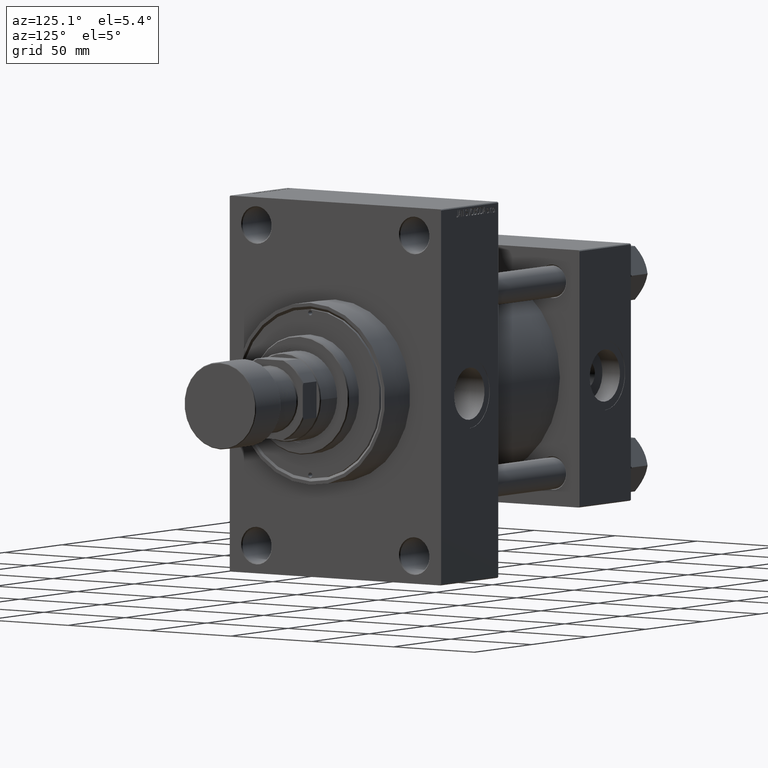
[diagram: clean part render]
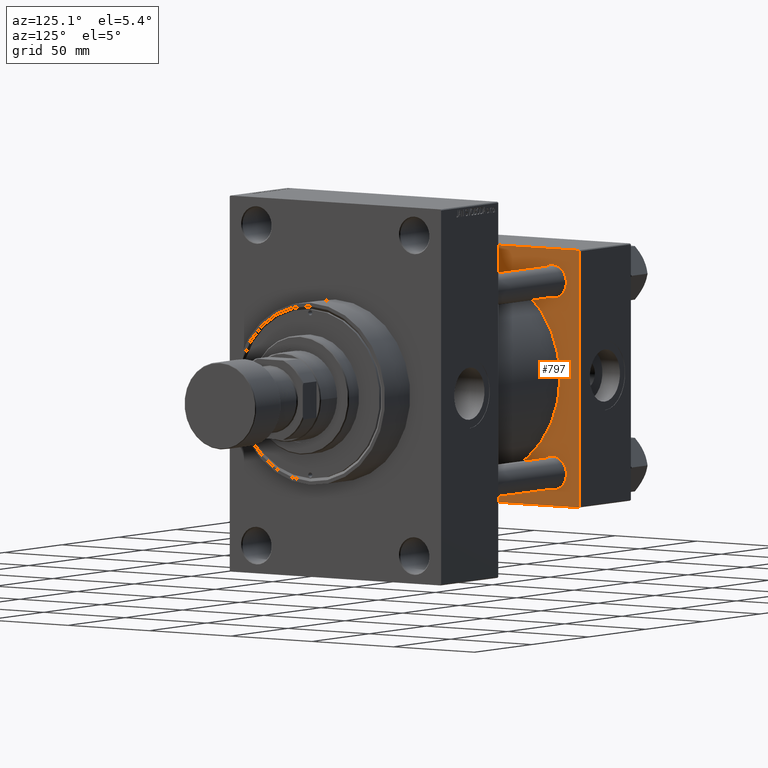
[diagram: same view with one face highlighted and labeled with its STEP entity id]
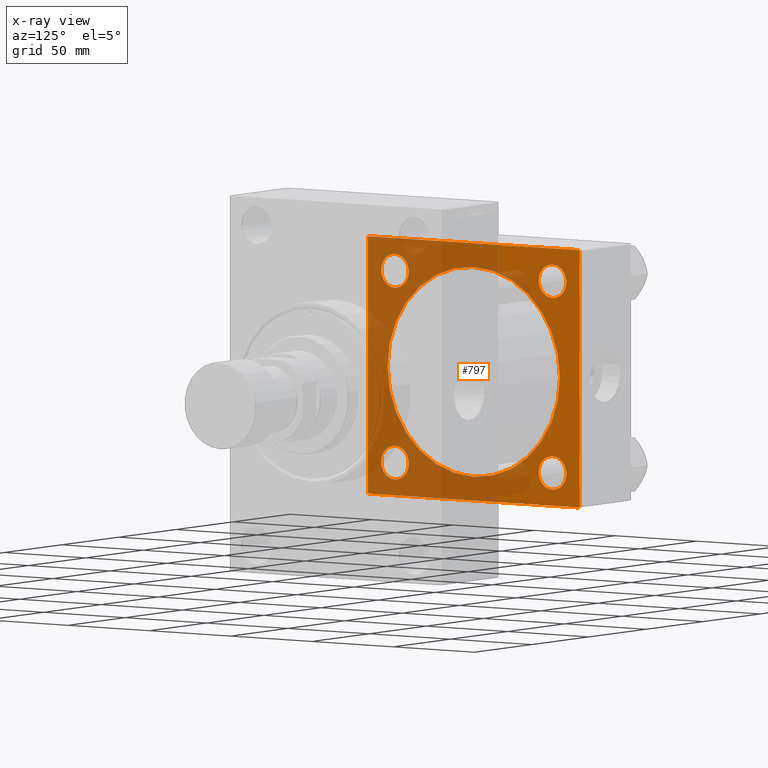
[diagram: x-ray of the same camera — body ghosted, the highlighted face saturated]
A machine part, auxiliary view. The second image highlights one B-rep face of the part: STEP entity #797.
The next image is the same camera in x-ray: the body ghosted, the highlighted face saturated — about 60% of this face is hidden behind the body in this view.
In plain terms, the highlighted planar face has unit normal (-1, 0, 0).
Its self-contained STEP definition (entity closure, byte-faithful):
#160 = DIRECTION ( 'NONE',  ( -0.000000000000000000, 0.000000000000000000, 1.000000000000000000 ) ) ;
#286 = CARTESIAN_POINT ( 'NONE',  ( 45.00000000000000000, 48.45000000000000995, 56.95000000000002416 ) ) ;
#438 = CARTESIAN_POINT ( 'NONE',  ( 45.00000000000000000, 64.49999999999997158, 65.00000000000001421 ) ) ;
#495 = DIRECTION ( 'NONE',  ( 0.000000000000000000, 0.000000000000000000, 1.000000000000000000 ) ) ;
#797 = ADVANCED_FACE ( 'NONE', ( #3348, #10913, #7255, #18013, #47821, #14339 ), #22137, .F. ) ;
#1212 = VERTEX_POINT ( 'NONE', #17980 ) ;
#1344 = ORIENTED_EDGE ( 'NONE', *, *, #40853, .T. ) ;
#2007 = CARTESIAN_POINT ( 'NONE',  ( 45.00000000000000000, 65.00000000000000000, 65.00000000000001421 ) ) ;
#2072 = DIRECTION ( 'NONE',  ( -1.000000000000000000, 0.000000000000000000, -0.000000000000000000 ) ) ;
#2829 = EDGE_CURVE ( 'NONE', #8876, #38395, #34873, .T. ) ;
#2983 = CIRCLE ( 'NONE', #14697, 8.500000000000007105 ) ;
#3159 = EDGE_CURVE ( 'NONE', #36499, #27525, #39459, .T. ) ;
#3348 = FACE_BOUND ( 'NONE', #22601, .T. ) ;
#3430 = DIRECTION ( 'NONE',  ( 1.000000000000000000, -0.000000000000000000, 0.000000000000000000 ) ) ;
#4352 = DIRECTION ( 'NONE',  ( -0.000000000000000000, 0.7071067811865474617, 0.7071067811865474617 ) ) ;
#4515 = DIRECTION ( 'NONE',  ( 0.000000000000000000, 0.000000000000000000, 1.000000000000000000 ) ) ;
#4696 = CARTESIAN_POINT ( 'NONE',  ( 45.00000000000000000, -48.44999999999999574, -39.95000000000001705 ) ) ;
#4749 = CARTESIAN_POINT ( 'NONE',  ( 45.00000000000000000, 3.888542821515762466E-15, -53.00000000000000711 ) ) ;
#4931 = AXIS2_PLACEMENT_3D ( 'NONE', #43976, #10981, #25887 ) ;
#5047 = CARTESIAN_POINT ( 'NONE',  ( 45.00000000000000000, 65.00000000000000000, -64.99999999999998579 ) ) ;
#5417 = VECTOR ( 'NONE', #9473, 1000.000000000000114 ) ;
#5516 = LINE ( 'NONE', #18758, #29531 ) ;
#5913 = AXIS2_PLACEMENT_3D ( 'NONE', #9645, #2072, #27731 ) ;
#6005 = DIRECTION ( 'NONE',  ( -0.000000000000000000, -0.7071067811865672237, -0.7071067811865279218 ) ) ;
#6129 = ORIENTED_EDGE ( 'NONE', *, *, #41875, .T. ) ;
#6322 = EDGE_CURVE ( 'NONE', #27525, #22209, #14410, .T. ) ;
#6492 = AXIS2_PLACEMENT_3D ( 'NONE', #20899, #38522, #16535 ) ;
#6691 = EDGE_CURVE ( 'NONE', #41224, #33841, #5516, .T. ) ;
#6708 = DIRECTION ( 'NONE',  ( -1.000000000000000000, 0.000000000000000000, -0.000000000000000000 ) ) ;
#7199 = ORIENTED_EDGE ( 'NONE', *, *, #27215, .F. ) ;
#7255 = FACE_BOUND ( 'NONE', #34849, .T. ) ;
#7587 = EDGE_LOOP ( 'NONE', ( #42268, #21028 ) ) ;
#7893 = DIRECTION ( 'NONE',  ( -1.000000000000000000, 0.000000000000000000, -0.000000000000000000 ) ) ;
#8180 = ORIENTED_EDGE ( 'NONE', *, *, #27058, .T. ) ;
#8627 = VERTEX_POINT ( 'NONE', #45353 ) ;
#8876 = VERTEX_POINT ( 'NONE', #4749 ) ;
#9367 = CARTESIAN_POINT ( 'NONE',  ( 45.00000000000000000, -2.602085213965210642E-15, 53.00000000000000711 ) ) ;
#9473 = DIRECTION ( 'NONE',  ( 0.000000000000000000, -0.7071067811865474617, 0.7071067811865474617 ) ) ;
#9645 = CARTESIAN_POINT ( 'NONE',  ( 45.00000000000000000, -48.44999999999999574, -48.45000000000003126 ) ) ;
#10522 = CIRCLE ( 'NONE', #37837, 53.00000000000000711 ) ;
#10539 = ORIENTED_EDGE ( 'NONE', *, *, #38012, .F. ) ;
#10809 = ORIENTED_EDGE ( 'NONE', *, *, #3159, .T. ) ;
#10913 = FACE_BOUND ( 'NONE', #27518, .T. ) ;
#10981 = DIRECTION ( 'NONE',  ( -1.000000000000000000, 0.000000000000000000, -0.000000000000000000 ) ) ;
#11088 = DIRECTION ( 'NONE',  ( 0.000000000000000000, 0.000000000000000000, 1.000000000000000000 ) ) ;
#11473 = EDGE_CURVE ( 'NONE', #13965, #13655, #22675, .T. ) ;
#12160 = AXIS2_PLACEMENT_3D ( 'NONE', #29236, #44149, #160 ) ;
#12944 = CARTESIAN_POINT ( 'NONE',  ( 45.00000000000000000, 65.00000000000000000, 64.49999999999998579 ) ) ;
#13005 = DIRECTION ( 'NONE',  ( -1.000000000000000000, 0.000000000000000000, -0.000000000000000000 ) ) ;
#13245 = DIRECTION ( 'NONE',  ( 0.000000000000000000, 0.000000000000000000, -1.000000000000000000 ) ) ;
#13499 = CIRCLE ( 'NONE', #6492, 8.500000000000007105 ) ;
#13655 = VERTEX_POINT ( 'NONE', #286 ) ;
#13946 = DIRECTION ( 'NONE',  ( 0.000000000000000000, 0.000000000000000000, 1.000000000000000000 ) ) ;
#13965 = VERTEX_POINT ( 'NONE', #38413 ) ;
#14339 = FACE_OUTER_BOUND ( 'NONE', #15315, .T. ) ;
#14410 = LINE ( 'NONE', #30551, #18585 ) ;
#14697 = AXIS2_PLACEMENT_3D ( 'NONE', #36482, #7893, #41342 ) ;
#14902 = DIRECTION ( 'NONE',  ( 0.000000000000000000, 0.000000000000000000, -1.000000000000000000 ) ) ;
#15141 = LINE ( 'NONE', #41268, #16026 ) ;
#15315 = EDGE_LOOP ( 'NONE', ( #10539, #33662, #7199, #34141, #18922, #10809, #38449, #45254 ) ) ;
#16026 = VECTOR ( 'NONE', #22955, 1000.000000000000000 ) ;
#16337 = VERTEX_POINT ( 'NONE', #18499 ) ;
#16535 = DIRECTION ( 'NONE',  ( 0.000000000000000000, 0.000000000000000000, 1.000000000000000000 ) ) ;
#16811 = ORIENTED_EDGE ( 'NONE', *, *, #11473, .T. ) ;
#16894 = EDGE_CURVE ( 'NONE', #1212, #41494, #28508, .T. ) ;
#17144 = CARTESIAN_POINT ( 'NONE',  ( 45.00000000000000000, 65.00000000000000000, 65.00000000000001421 ) ) ;
#17573 = CIRCLE ( 'NONE', #19139, 8.500000000000007105 ) ;
#17980 = CARTESIAN_POINT ( 'NONE',  ( 45.00000000000000000, -48.44999999999999574, -56.95000000000003837 ) ) ;
#18013 = FACE_BOUND ( 'NONE', #23756, .T. ) ;
#18499 = CARTESIAN_POINT ( 'NONE',  ( 45.00000000000000000, -48.44999999999999574, 56.95000000000003837 ) ) ;
#18585 = VECTOR ( 'NONE', #14902, 1000.000000000000000 ) ;
#18758 = CARTESIAN_POINT ( 'NONE',  ( 45.00000000000000000, 65.00000000000000000, -64.49999999999995737 ) ) ;
#18922 = ORIENTED_EDGE ( 'NONE', *, *, #27214, .T. ) ;
#19099 = CARTESIAN_POINT ( 'NONE',  ( 45.00000000000000000, -48.44999999999999574, 48.45000000000003126 ) ) ;
#19139 = AXIS2_PLACEMENT_3D ( 'NONE', #19099, #26926, #45251 ) ;
#19359 = EDGE_CURVE ( 'NONE', #16337, #45346, #17573, .T. ) ;
#19774 = EDGE_CURVE ( 'NONE', #22209, #41829, #15141, .T. ) ;
#20044 = AXIS2_PLACEMENT_3D ( 'NONE', #37150, #44966, #495 ) ;
#20737 = ORIENTED_EDGE ( 'NONE', *, *, #19359, .T. ) ;
#20747 = CARTESIAN_POINT ( 'NONE',  ( 45.00000000000000000, -65.00000000000000000, 64.50000000000000000 ) ) ;
#20899 = CARTESIAN_POINT ( 'NONE',  ( 45.00000000000000000, -48.44999999999999574, -48.45000000000003126 ) ) ;
#21028 = ORIENTED_EDGE ( 'NONE', *, *, #2829, .F. ) ;
#21130 = CARTESIAN_POINT ( 'NONE',  ( 45.00000000000000000, -48.44999999999999574, 39.95000000000001705 ) ) ;
#21381 = CARTESIAN_POINT ( 'NONE',  ( 45.00000000000000000, -64.49999999999994316, -65.00000000000000000 ) ) ;
#22137 = PLANE ( 'NONE',  #12160 ) ;
#22209 = VERTEX_POINT ( 'NONE', #34737 ) ;
#22601 = EDGE_LOOP ( 'NONE', ( #33894, #1344 ) ) ;
#22675 = CIRCLE ( 'NONE', #46140, 8.500000000000007105 ) ;
#22955 = DIRECTION ( 'NONE',  ( 0.000000000000000000, 0.7071067811865279218, -0.7071067811865671127 ) ) ;
#23314 = DIRECTION ( 'NONE',  ( -1.000000000000000000, 0.000000000000000000, -0.000000000000000000 ) ) ;
#23551 = VECTOR ( 'NONE', #27271, 1000.000000000000000 ) ;
#23756 = EDGE_LOOP ( 'NONE', ( #16811, #45893 ) ) ;
#24070 = VECTOR ( 'NONE', #13245, 1000.000000000000000 ) ;
#24709 = CARTESIAN_POINT ( 'NONE',  ( 45.00000000000000000, -2.602085213965210642E-15, 0.000000000000000000 ) ) ;
#25887 = DIRECTION ( 'NONE',  ( 0.000000000000000000, 0.000000000000000000, 1.000000000000000000 ) ) ;
#26926 = DIRECTION ( 'NONE',  ( -1.000000000000000000, 0.000000000000000000, -0.000000000000000000 ) ) ;
#27058 = EDGE_CURVE ( 'NONE', #8627, #36564, #2983, .T. ) ;
#27214 = EDGE_CURVE ( 'NONE', #31561, #36499, #35716, .T. ) ;
#27215 = EDGE_CURVE ( 'NONE', #27580, #33841, #42806, .T. ) ;
#27271 = DIRECTION ( 'NONE',  ( 0.000000000000000000, -1.000000000000000000, -1.067522139062650425E-16 ) ) ;
#27274 = EDGE_CURVE ( 'NONE', #13655, #13965, #41201, .T. ) ;
#27518 = EDGE_LOOP ( 'NONE', ( #29259, #8180 ) ) ;
#27525 = VERTEX_POINT ( 'NONE', #20747 ) ;
#27580 = VERTEX_POINT ( 'NONE', #12944 ) ;
#27731 = DIRECTION ( 'NONE',  ( 0.000000000000000000, 0.000000000000000000, 1.000000000000000000 ) ) ;
#28508 = CIRCLE ( 'NONE', #5913, 8.500000000000007105 ) ;
#28616 = DIRECTION ( 'NONE',  ( 0.000000000000000000, 0.000000000000000000, 1.000000000000000000 ) ) ;
#29101 = CIRCLE ( 'NONE', #41591, 8.500000000000007105 ) ;
#29173 = CARTESIAN_POINT ( 'NONE',  ( 45.00000000000000000, 48.45000000000000995, 48.45000000000001705 ) ) ;
#29236 = CARTESIAN_POINT ( 'NONE',  ( 45.00000000000000000, 0.000000000000000000, 0.000000000000000000 ) ) ;
#29259 = ORIENTED_EDGE ( 'NONE', *, *, #40579, .T. ) ;
#29280 = EDGE_CURVE ( 'NONE', #27580, #31561, #31213, .T. ) ;
#29504 = CARTESIAN_POINT ( 'NONE',  ( 45.00000000000000000, -64.49999999999997158, 65.00000000000000000 ) ) ;
#29531 = VECTOR ( 'NONE', #4352, 1000.000000000000114 ) ;
#30086 = CARTESIAN_POINT ( 'NONE',  ( 45.00000000000000000, 65.00000000000000000, -64.49999999999995737 ) ) ;
#30551 = CARTESIAN_POINT ( 'NONE',  ( 45.00000000000000000, -65.00000000000000000, 65.00000000000000000 ) ) ;
#31213 = LINE ( 'NONE', #45878, #5417 ) ;
#31561 = VERTEX_POINT ( 'NONE', #438 ) ;
#33662 = ORIENTED_EDGE ( 'NONE', *, *, #6691, .T. ) ;
#33841 = VERTEX_POINT ( 'NONE', #30086 ) ;
#33894 = ORIENTED_EDGE ( 'NONE', *, *, #16894, .T. ) ;
#34141 = ORIENTED_EDGE ( 'NONE', *, *, #29280, .T. ) ;
#34352 = LINE ( 'NONE', #5047, #23551 ) ;
#34737 = CARTESIAN_POINT ( 'NONE',  ( 45.00000000000000000, -65.00000000000000000, -64.49999999999991473 ) ) ;
#34849 = EDGE_LOOP ( 'NONE', ( #6129, #20737 ) ) ;
#34873 = CIRCLE ( 'NONE', #20044, 53.00000000000000711 ) ;
#34902 = VECTOR ( 'NONE', #6005, 1000.000000000000000 ) ;
#35716 = LINE ( 'NONE', #2007, #42027 ) ;
#36482 = CARTESIAN_POINT ( 'NONE',  ( 45.00000000000000000, 48.45000000000000995, -48.45000000000001705 ) ) ;
#36499 = VERTEX_POINT ( 'NONE', #29504 ) ;
#36564 = VERTEX_POINT ( 'NONE', #44892 ) ;
#37150 = CARTESIAN_POINT ( 'NONE',  ( 45.00000000000000000, -2.602085213965210642E-15, 0.000000000000000000 ) ) ;
#37837 = AXIS2_PLACEMENT_3D ( 'NONE', #24709, #3430, #13946 ) ;
#38012 = EDGE_CURVE ( 'NONE', #41224, #41829, #34352, .T. ) ;
#38395 = VERTEX_POINT ( 'NONE', #9367 ) ;
#38413 = CARTESIAN_POINT ( 'NONE',  ( 45.00000000000000000, 48.45000000000000995, 39.95000000000000284 ) ) ;
#38449 = ORIENTED_EDGE ( 'NONE', *, *, #6322, .T. ) ;
#38476 = CIRCLE ( 'NONE', #4931, 8.500000000000007105 ) ;
#38522 = DIRECTION ( 'NONE',  ( -1.000000000000000000, 0.000000000000000000, -0.000000000000000000 ) ) ;
#39459 = LINE ( 'NONE', #43604, #34902 ) ;
#39641 = CARTESIAN_POINT ( 'NONE',  ( 45.00000000000000000, 64.49999999999997158, -64.99999999999998579 ) ) ;
#40579 = EDGE_CURVE ( 'NONE', #36564, #8627, #38476, .T. ) ;
#40853 = EDGE_CURVE ( 'NONE', #41494, #1212, #13499, .T. ) ;
#41134 = CARTESIAN_POINT ( 'NONE',  ( 45.00000000000000000, -48.44999999999999574, 48.45000000000003126 ) ) ;
#41201 = CIRCLE ( 'NONE', #44360, 8.500000000000007105 ) ;
#41224 = VERTEX_POINT ( 'NONE', #39641 ) ;
#41268 = CARTESIAN_POINT ( 'NONE',  ( 45.00000000000000000, -64.49999999999994316, -65.00000000000000000 ) ) ;
#41342 = DIRECTION ( 'NONE',  ( 0.000000000000000000, 0.000000000000000000, 1.000000000000000000 ) ) ;
#41494 = VERTEX_POINT ( 'NONE', #4696 ) ;
#41591 = AXIS2_PLACEMENT_3D ( 'NONE', #41134, #23314, #4515 ) ;
#41829 = VERTEX_POINT ( 'NONE', #21381 ) ;
#41875 = EDGE_CURVE ( 'NONE', #45346, #16337, #29101, .T. ) ;
#42027 = VECTOR ( 'NONE', #43518, 1000.000000000000000 ) ;
#42268 = ORIENTED_EDGE ( 'NONE', *, *, #43541, .F. ) ;
#42806 = LINE ( 'NONE', #17144, #24070 ) ;
#43518 = DIRECTION ( 'NONE',  ( 0.000000000000000000, -1.000000000000000000, -1.067522139062650425E-16 ) ) ;
#43541 = EDGE_CURVE ( 'NONE', #38395, #8876, #10522, .T. ) ;
#43604 = CARTESIAN_POINT ( 'NONE',  ( 45.00000000000000000, -65.00000000000000000, 64.50000000000000000 ) ) ;
#43976 = CARTESIAN_POINT ( 'NONE',  ( 45.00000000000000000, 48.45000000000000995, -48.45000000000001705 ) ) ;
#44149 = DIRECTION ( 'NONE',  ( -1.000000000000000000, 0.000000000000000000, -0.000000000000000000 ) ) ;
#44360 = AXIS2_PLACEMENT_3D ( 'NONE', #46711, #13005, #28616 ) ;
#44892 = CARTESIAN_POINT ( 'NONE',  ( 45.00000000000000000, 48.45000000000000995, -56.95000000000002416 ) ) ;
#44966 = DIRECTION ( 'NONE',  ( 1.000000000000000000, -0.000000000000000000, 0.000000000000000000 ) ) ;
#45251 = DIRECTION ( 'NONE',  ( 0.000000000000000000, 0.000000000000000000, 1.000000000000000000 ) ) ;
#45254 = ORIENTED_EDGE ( 'NONE', *, *, #19774, .T. ) ;
#45346 = VERTEX_POINT ( 'NONE', #21130 ) ;
#45353 = CARTESIAN_POINT ( 'NONE',  ( 45.00000000000000000, 48.45000000000000995, -39.95000000000000284 ) ) ;
#45878 = CARTESIAN_POINT ( 'NONE',  ( 45.00000000000000000, 64.49999999999997158, 65.00000000000001421 ) ) ;
#45893 = ORIENTED_EDGE ( 'NONE', *, *, #27274, .T. ) ;
#46140 = AXIS2_PLACEMENT_3D ( 'NONE', #29173, #6708, #11088 ) ;
#46711 = CARTESIAN_POINT ( 'NONE',  ( 45.00000000000000000, 48.45000000000000995, 48.45000000000001705 ) ) ;
#47821 = FACE_BOUND ( 'NONE', #7587, .T. ) ;